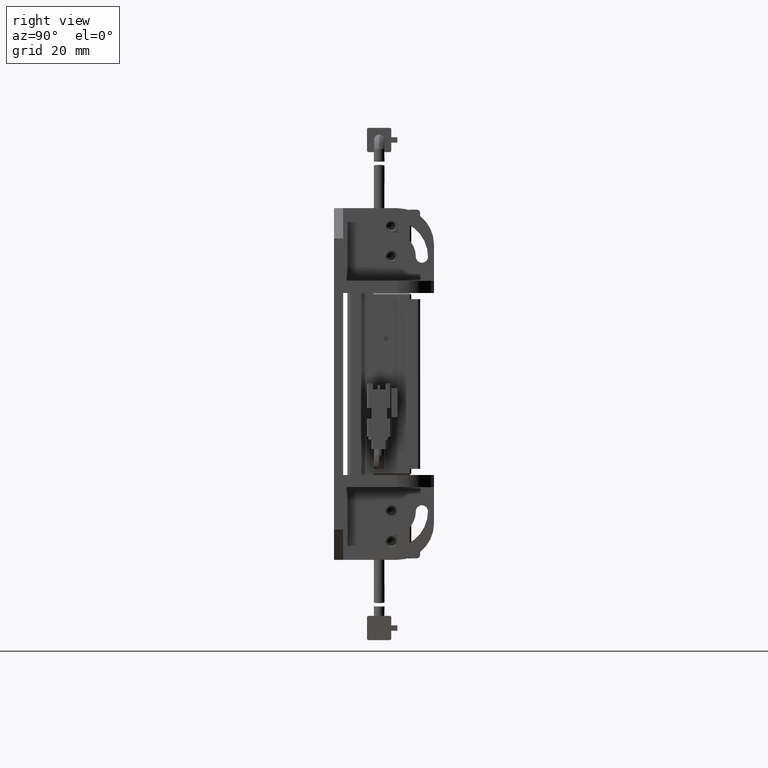
[diagram: clean part render]
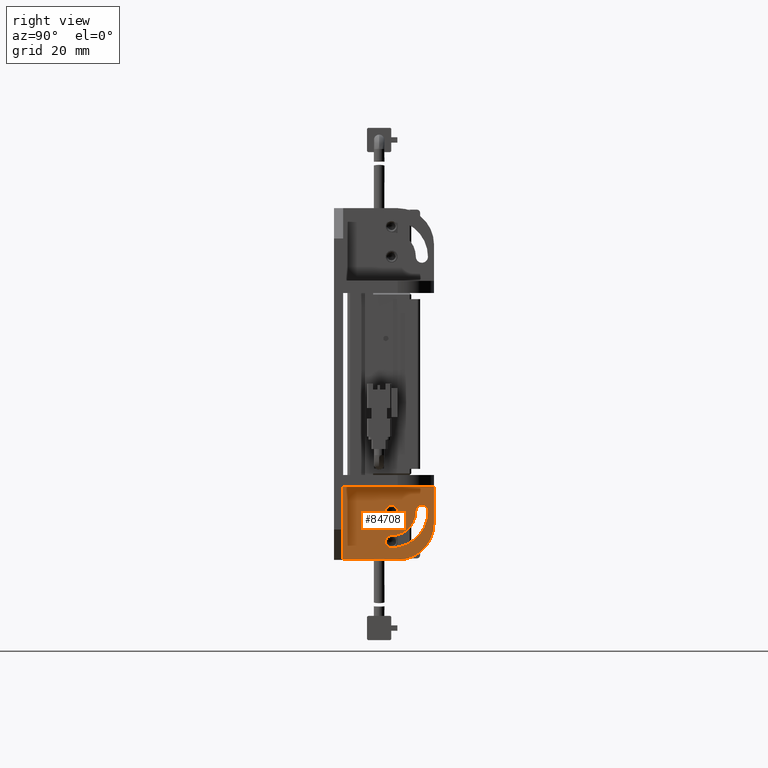
[diagram: same view with one face highlighted and labeled with its STEP entity id]
A machine part, right view. The second image highlights one B-rep face of the part: STEP entity #84708.
In plain terms, the highlighted planar face has unit normal (-1, 0, 0).
Its self-contained STEP definition (entity closure, byte-faithful):
#558 = VECTOR ( 'NONE', #40815, 1000.000000000000000 ) ;
#2043 = DIRECTION ( 'NONE',  ( 8.630240554369974900E-015, -6.547227048240947600E-017, 1.000000000000000000 ) ) ;
#3103 = CARTESIAN_POINT ( 'NONE',  ( 33.99999999999938900, 29.99999999999998200, -58.00000000000039800 ) ) ;
#3196 = CARTESIAN_POINT ( 'NONE',  ( 33.99999999999942400, 15.99999999999997900, -54.00000000000039800 ) ) ;
#4495 = CARTESIAN_POINT ( 'NONE',  ( 33.99999999999959500, -1.928670976885294900E-014, -34.00000000000036900 ) ) ;
#5272 = AXIS2_PLACEMENT_3D ( 'NONE', #30220, #77593, #36999 ) ;
#5289 = CIRCLE ( 'NONE', #55328, 11.99999999999999600 ) ;
#5540 = DIRECTION ( 'NONE',  ( 8.485680264705241500E-015, -6.547227048240945200E-017, 1.000000000000000000 ) ) ;
#7439 = VECTOR ( 'NONE', #36091, 1000.000000000000000 ) ;
#10305 = CARTESIAN_POINT ( 'NONE',  ( 33.99999999999953100, 15.99999999999998200, -42.00000000000037700 ) ) ;
#12224 = FACE_BOUND ( 'NONE', #79317, .T. ) ;
#12366 = CARTESIAN_POINT ( 'NONE',  ( 33.99999999999938200, -1.771537527727512200E-014, -58.00000000000039800 ) ) ;
#13339 = AXIS2_PLACEMENT_3D ( 'NONE', #56854, #16255, #63680 ) ;
#13696 = VERTEX_POINT ( 'NONE', #85150 ) ;
#15463 = PLANE ( 'NONE',  #63303 ) ;
#15673 = CIRCLE ( 'NONE', #5272, 8.000000000000010700 ) ;
#16255 = DIRECTION ( 'NONE',  ( -1.000000000000000000, 1.665334536937717100E-016, 8.485680264705241500E-015 ) ) ;
#16515 = LINE ( 'NONE', #67822, #558 ) ;
#17181 = DIRECTION ( 'NONE',  ( 0.0000000000000000000, 1.000000000000000000, 0.0000000000000000000 ) ) ;
#17826 = CARTESIAN_POINT ( 'NONE',  ( 33.99999999999953100, 17.99999999999999300, -42.00000000000037700 ) ) ;
#19402 = EDGE_CURVE ( 'NONE', #45491, #71005, #51767, .T. ) ;
#19769 = CARTESIAN_POINT ( 'NONE',  ( 33.99999999999946000, 15.99999999999998200, -50.00000000000039100 ) ) ;
#19829 = CARTESIAN_POINT ( 'NONE',  ( 33.99999999999953100, 15.99999999999998200, -42.00000000000037700 ) ) ;
#21622 = EDGE_CURVE ( 'NONE', #31805, #46694, #44066, .T. ) ;
#22315 = CARTESIAN_POINT ( 'NONE',  ( 33.99999999999953100, 13.99999999999997500, -42.00000000000035500 ) ) ;
#22904 = VERTEX_POINT ( 'NONE', #17826 ) ;
#23353 = LINE ( 'NONE', #76683, #7439 ) ;
#24396 = VERTEX_POINT ( 'NONE', #58356 ) ;
#26642 = DIRECTION ( 'NONE',  ( 0.0000000000000000000, 1.000000000000000000, 0.0000000000000000000 ) ) ;
#27481 = VERTEX_POINT ( 'NONE', #72512 ) ;
#27771 = LINE ( 'NONE', #3103, #63832 ) ;
#29014 = DIRECTION ( 'NONE',  ( -1.000000000000000000, 1.665334536937717100E-016, 8.485680264705241500E-015 ) ) ;
#29644 = CIRCLE ( 'NONE', #13339, 12.00000000000001100 ) ;
#30136 = ORIENTED_EDGE ( 'NONE', *, *, #32118, .T. ) ;
#30220 = CARTESIAN_POINT ( 'NONE',  ( 33.99999999999953100, 15.99999999999998200, -42.00000000000037700 ) ) ;
#30494 = CARTESIAN_POINT ( 'NONE',  ( 33.99999999999953100, 27.99999999999999300, -42.00000000000037700 ) ) ;
#30722 = VERTEX_POINT ( 'NONE', #82429 ) ;
#31805 = VERTEX_POINT ( 'NONE', #3196 ) ;
#32118 = EDGE_CURVE ( 'NONE', #45491, #13696, #16515, .T. ) ;
#33272 = ORIENTED_EDGE ( 'NONE', *, *, #21622, .T. ) ;
#33511 = DIRECTION ( 'NONE',  ( -1.000000000000000000, 1.665334536937717100E-016, 8.598814404442859700E-015 ) ) ;
#35505 = CIRCLE ( 'NONE', #78138, 2.000000000000008900 ) ;
#36091 = DIRECTION ( 'NONE',  ( -1.665334536937722700E-016, -1.000000000000000000, -6.547227048240803400E-017 ) ) ;
#36999 = DIRECTION ( 'NONE',  ( 0.0000000000000000000, 1.000000000000000000, 0.0000000000000000000 ) ) ;
#39662 = DIRECTION ( 'NONE',  ( -1.000000000000000000, 1.665334536937717100E-016, 8.485680264705241500E-015 ) ) ;
#40815 = DIRECTION ( 'NONE',  ( 1.665334536937722700E-016, 1.000000000000000000, 6.547227048240803400E-017 ) ) ;
#42081 = CIRCLE ( 'NONE', #52997, 2.000000000000008900 ) ;
#42683 = DIRECTION ( 'NONE',  ( -1.000000000000000000, 1.665334536937717100E-016, 8.630240554369974900E-015 ) ) ;
#43201 = VECTOR ( 'NONE', #5540, 1000.000000000000000 ) ;
#44066 = CIRCLE ( 'NONE', #51642, 2.000000000000001800 ) ;
#44889 = ORIENTED_EDGE ( 'NONE', *, *, #19402, .F. ) ;
#45491 = VERTEX_POINT ( 'NONE', #58934 ) ;
#46694 = VERTEX_POINT ( 'NONE', #19769 ) ;
#47981 = EDGE_CURVE ( 'NONE', #24396, #46694, #15673, .T. ) ;
#50619 = DIRECTION ( 'NONE',  ( 8.485680264705241500E-015, -6.547227048240945200E-017, 1.000000000000000000 ) ) ;
#50725 = EDGE_LOOP ( 'NONE', ( #50808, #61478, #84044, #44889, #30136 ) ) ;
#50808 = ORIENTED_EDGE ( 'NONE', *, *, #80197, .F. ) ;
#51642 = AXIS2_PLACEMENT_3D ( 'NONE', #69623, #29014, #76390 ) ;
#51767 = LINE ( 'NONE', #12366, #43201 ) ;
#52997 = AXIS2_PLACEMENT_3D ( 'NONE', #10305, #57813, #17181 ) ;
#55328 = AXIS2_PLACEMENT_3D ( 'NONE', #74096, #33511, #80896 ) ;
#55871 = ORIENTED_EDGE ( 'NONE', *, *, #68356, .T. ) ;
#56854 = CARTESIAN_POINT ( 'NONE',  ( 33.99999999999953100, 15.99999999999998200, -42.00000000000037700 ) ) ;
#57813 = DIRECTION ( 'NONE',  ( -1.000000000000000000, 1.665334536937717100E-016, 8.485680264705241500E-015 ) ) ;
#58356 = CARTESIAN_POINT ( 'NONE',  ( 33.99999999999953100, 23.99999999999999600, -42.00000000000037700 ) ) ;
#58507 = EDGE_CURVE ( 'NONE', #85625, #31805, #29644, .T. ) ;
#58934 = CARTESIAN_POINT ( 'NONE',  ( 33.99999999999938200, -1.771537527727512200E-014, -58.00000000000039800 ) ) ;
#59960 = ORIENTED_EDGE ( 'NONE', *, *, #47981, .F. ) ;
#60702 = EDGE_CURVE ( 'NONE', #24396, #85625, #82588, .T. ) ;
#61478 = ORIENTED_EDGE ( 'NONE', *, *, #85958, .T. ) ;
#62224 = ORIENTED_EDGE ( 'NONE', *, *, #70060, .T. ) ;
#63303 = AXIS2_PLACEMENT_3D ( 'NONE', #83257, #42683, #2043 ) ;
#63462 = ORIENTED_EDGE ( 'NONE', *, *, #60702, .T. ) ;
#63680 = DIRECTION ( 'NONE',  ( 0.0000000000000000000, 1.000000000000000000, 0.0000000000000000000 ) ) ;
#63832 = VECTOR ( 'NONE', #50619, 1000.000000000000000 ) ;
#66333 = VERTEX_POINT ( 'NONE', #22315 ) ;
#66388 = FACE_BOUND ( 'NONE', #68480, .T. ) ;
#67264 = DIRECTION ( 'NONE',  ( -1.000000000000000000, 1.665334536937717100E-016, 8.485680264705241500E-015 ) ) ;
#67822 = CARTESIAN_POINT ( 'NONE',  ( 33.99999999999938900, 29.99999999999998200, -58.00000000000039800 ) ) ;
#68356 = EDGE_CURVE ( 'NONE', #66333, #22904, #42081, .T. ) ;
#68480 = EDGE_LOOP ( 'NONE', ( #62224, #55871 ) ) ;
#69623 = CARTESIAN_POINT ( 'NONE',  ( 33.99999999999943900, 15.99999999999998200, -52.00000000000039100 ) ) ;
#70060 = EDGE_CURVE ( 'NONE', #22904, #66333, #35505, .T. ) ;
#71005 = VERTEX_POINT ( 'NONE', #4495 ) ;
#72512 = CARTESIAN_POINT ( 'NONE',  ( 33.99999999999949600, 29.99999999999998200, -46.00000000000040500 ) ) ;
#74096 = CARTESIAN_POINT ( 'NONE',  ( 33.99999999999948800, 17.99999999999998600, -46.00000000000040500 ) ) ;
#75567 = AXIS2_PLACEMENT_3D ( 'NONE', #80252, #39662, #87008 ) ;
#76390 = DIRECTION ( 'NONE',  ( 0.0000000000000000000, 1.000000000000000000, 0.0000000000000000000 ) ) ;
#76527 = EDGE_CURVE ( 'NONE', #30722, #71005, #23353, .T. ) ;
#76683 = CARTESIAN_POINT ( 'NONE',  ( 33.99999999999959500, -1.928670976885294900E-014, -34.00000000000036900 ) ) ;
#76845 = ORIENTED_EDGE ( 'NONE', *, *, #58507, .T. ) ;
#77593 = DIRECTION ( 'NONE',  ( -1.000000000000000000, 1.665334536937717100E-016, 8.485680264705241500E-015 ) ) ;
#78138 = AXIS2_PLACEMENT_3D ( 'NONE', #19829, #67264, #26642 ) ;
#79317 = EDGE_LOOP ( 'NONE', ( #76845, #33272, #59960, #63462 ) ) ;
#80197 = EDGE_CURVE ( 'NONE', #27481, #13696, #5289, .T. ) ;
#80252 = CARTESIAN_POINT ( 'NONE',  ( 33.99999999999953100, 25.99999999999999600, -42.00000000000037700 ) ) ;
#80896 = DIRECTION ( 'NONE',  ( -8.673617379884038600E-015, 0.0000000000000000000, -1.000000000000000000 ) ) ;
#82429 = CARTESIAN_POINT ( 'NONE',  ( 33.99999999999960200, 29.99999999999998200, -34.00000000000036900 ) ) ;
#82588 = CIRCLE ( 'NONE', #75567, 1.999999999999998200 ) ;
#83257 = CARTESIAN_POINT ( 'NONE',  ( 33.99999999999938200, -1.771537527727512200E-014, -58.00000000000039800 ) ) ;
#84044 = ORIENTED_EDGE ( 'NONE', *, *, #76527, .T. ) ;
#84305 = FACE_OUTER_BOUND ( 'NONE', #50725, .T. ) ;
#84708 = ADVANCED_FACE ( 'NONE', ( #84305, #12224, #66388 ), #15463, .F. ) ;
#85150 = CARTESIAN_POINT ( 'NONE',  ( 33.99999999999938900, 17.99999999999998600, -58.00000000000039800 ) ) ;
#85625 = VERTEX_POINT ( 'NONE', #30494 ) ;
#85958 = EDGE_CURVE ( 'NONE', #27481, #30722, #27771, .T. ) ;
#87008 = DIRECTION ( 'NONE',  ( 0.0000000000000000000, 1.000000000000000000, 0.0000000000000000000 ) ) ;